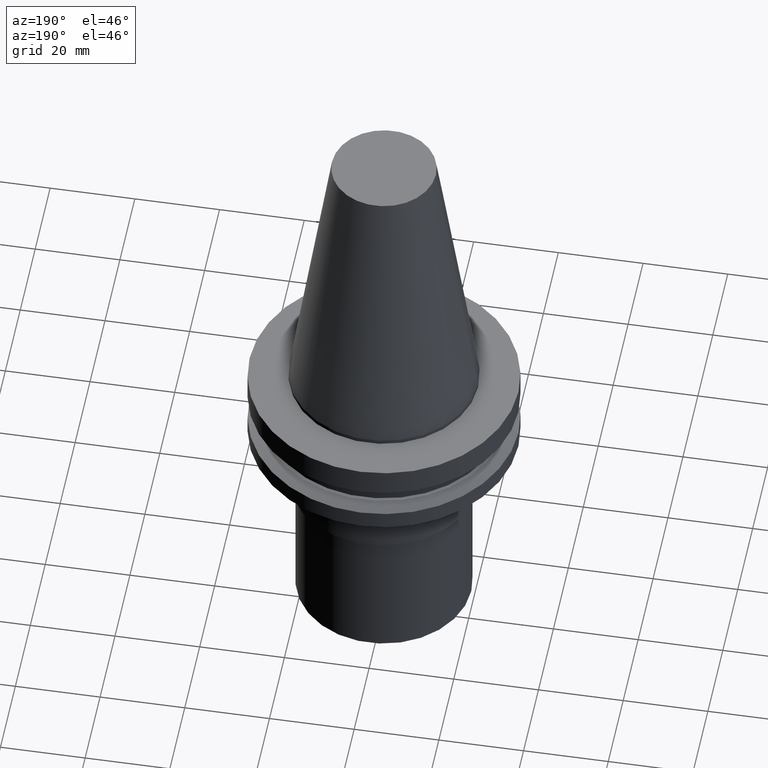
[diagram: clean part render]
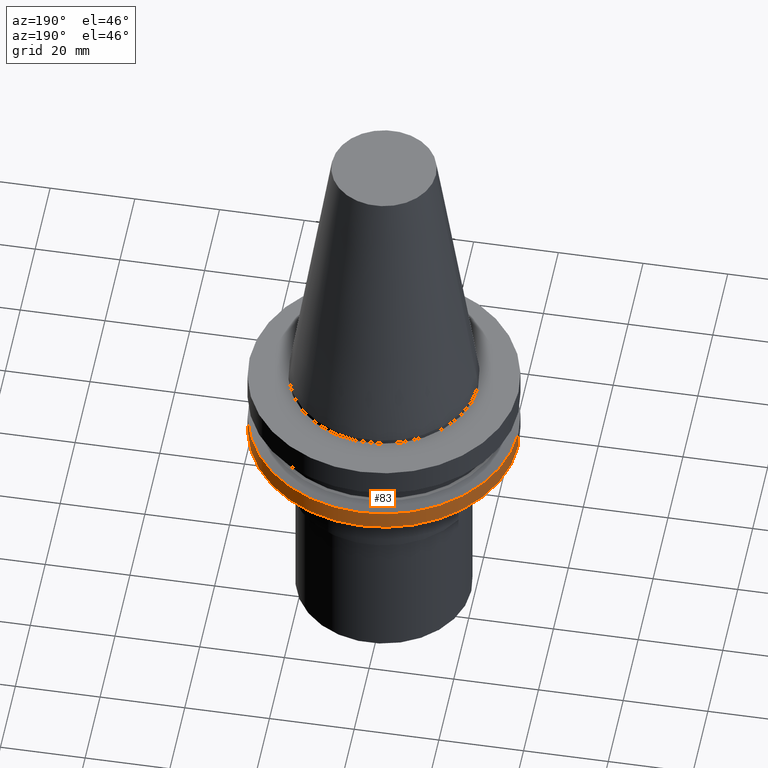
[diagram: same view with one face highlighted and labeled with its STEP entity id]
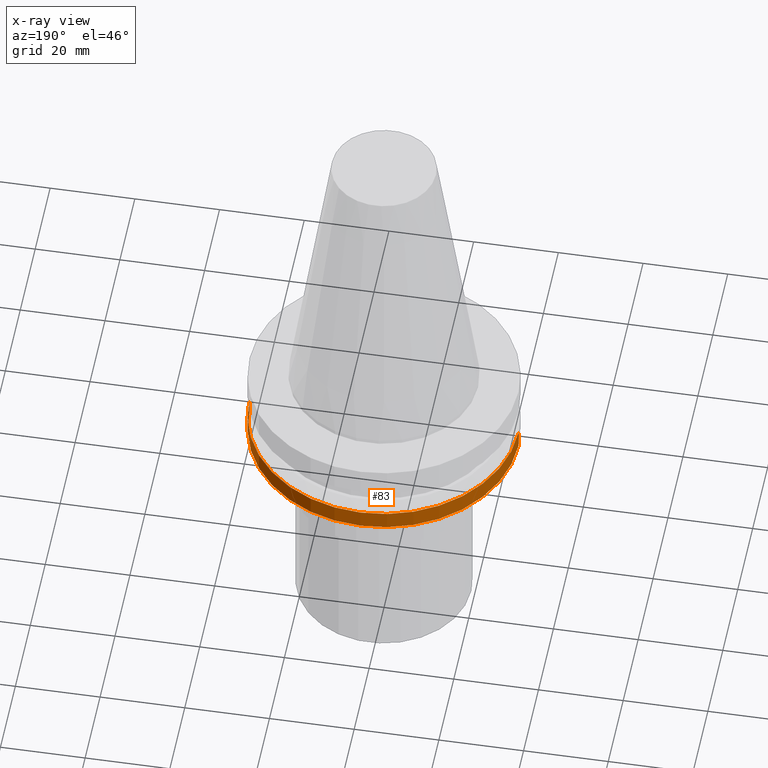
[diagram: x-ray of the same camera — body ghosted, the highlighted face saturated]
A machine part, auxiliary view. The second image highlights one B-rep face of the part: STEP entity #83.
The next image is the same camera in x-ray: the body ghosted, the highlighted face saturated — about 0% of this face is hidden behind the body in this view.
In plain terms, the highlighted cylindrical surface (partial cylindrical patch) has radius 31.75 mm, axis along (-0, -0, 1).
Its self-contained STEP definition (entity closure, byte-faithful):
#51 = EDGE_CURVE ( 'NONE', #371, #316, #264, .T. ) ;
#53 = FACE_OUTER_BOUND ( 'NONE', #95, .T. ) ;
#58 = VECTOR ( 'NONE', #737, 1000.000000000000000 ) ;
#83 = ADVANCED_FACE ( 'NONE', ( #53 ), #320, .T. ) ;
#95 = EDGE_LOOP ( 'NONE', ( #237, #358, #564, #620 ) ) ;
#156 = CARTESIAN_POINT ( 'NONE',  ( 31.75000000000000000, 0.000000000000000000, -14.65472339340266572 ) ) ;
#201 = DIRECTION ( 'NONE',  ( 1.000000000000000000, 0.000000000000000000, 0.000000000000000000 ) ) ;
#207 = CARTESIAN_POINT ( 'NONE',  ( 31.75000000000000000, 0.000000000000000000, 68.25000000000000000 ) ) ;
#221 = EDGE_CURVE ( 'NONE', #512, #371, #425, .T. ) ;
#237 = ORIENTED_EDGE ( 'NONE', *, *, #221, .T. ) ;
#255 = CARTESIAN_POINT ( 'NONE',  ( -31.75000000000000000, 3.888253587292846476E-15, 68.25000000000000000 ) ) ;
#264 = LINE ( 'NONE', #255, #823 ) ;
#284 = DIRECTION ( 'NONE',  ( 1.000000000000000000, 0.000000000000000000, 0.000000000000000000 ) ) ;
#286 = DIRECTION ( 'NONE',  ( 1.000000000000000000, 0.000000000000000000, 0.000000000000000000 ) ) ;
#314 = AXIS2_PLACEMENT_3D ( 'NONE', #421, #423, #286 ) ;
#316 = VERTEX_POINT ( 'NONE', #756 ) ;
#320 = CYLINDRICAL_SURFACE ( 'NONE', #393, 31.75000000000000000 ) ;
#325 = VERTEX_POINT ( 'NONE', #156 ) ;
#336 = DIRECTION ( 'NONE',  ( -0.000000000000000000, -0.000000000000000000, 1.000000000000000000 ) ) ;
#358 = ORIENTED_EDGE ( 'NONE', *, *, #51, .T. ) ;
#371 = VERTEX_POINT ( 'NONE', #763 ) ;
#393 = AXIS2_PLACEMENT_3D ( 'NONE', #399, #336, #201 ) ;
#399 = CARTESIAN_POINT ( 'NONE',  ( 0.000000000000000000, 0.000000000000000000, 68.25000000000000000 ) ) ;
#421 = CARTESIAN_POINT ( 'NONE',  ( 0.000000000000000000, 0.000000000000000000, -19.04999999999999716 ) ) ;
#423 = DIRECTION ( 'NONE',  ( -0.000000000000000000, -0.000000000000000000, 1.000000000000000000 ) ) ;
#425 = CIRCLE ( 'NONE', #314, 31.74999999999999289 ) ;
#429 = DIRECTION ( 'NONE',  ( -0.000000000000000000, -0.000000000000000000, 1.000000000000000000 ) ) ;
#457 = CARTESIAN_POINT ( 'NONE',  ( 31.74999999999999289, 0.000000000000000000, -19.04999999999999716 ) ) ;
#468 = AXIS2_PLACEMENT_3D ( 'NONE', #603, #429, #284 ) ;
#512 = VERTEX_POINT ( 'NONE', #457 ) ;
#564 = ORIENTED_EDGE ( 'NONE', *, *, #638, .F. ) ;
#603 = CARTESIAN_POINT ( 'NONE',  ( 0.000000000000000000, 0.000000000000000000, -14.65472339340266572 ) ) ;
#620 = ORIENTED_EDGE ( 'NONE', *, *, #697, .F. ) ;
#638 = EDGE_CURVE ( 'NONE', #325, #316, #672, .T. ) ;
#672 = CIRCLE ( 'NONE', #468, 31.75000000000000000 ) ;
#697 = EDGE_CURVE ( 'NONE', #512, #325, #800, .T. ) ;
#718 = DIRECTION ( 'NONE',  ( -0.000000000000000000, -0.000000000000000000, 1.000000000000000000 ) ) ;
#737 = DIRECTION ( 'NONE',  ( -0.000000000000000000, -0.000000000000000000, 1.000000000000000000 ) ) ;
#756 = CARTESIAN_POINT ( 'NONE',  ( -31.75000000000000000, 3.888253587292846476E-15, -14.65472339340266572 ) ) ;
#763 = CARTESIAN_POINT ( 'NONE',  ( -31.74999999999999289, 3.888253587292845687E-15, -19.04999999999999716 ) ) ;
#800 = LINE ( 'NONE', #207, #58 ) ;
#823 = VECTOR ( 'NONE', #718, 1000.000000000000000 ) ;